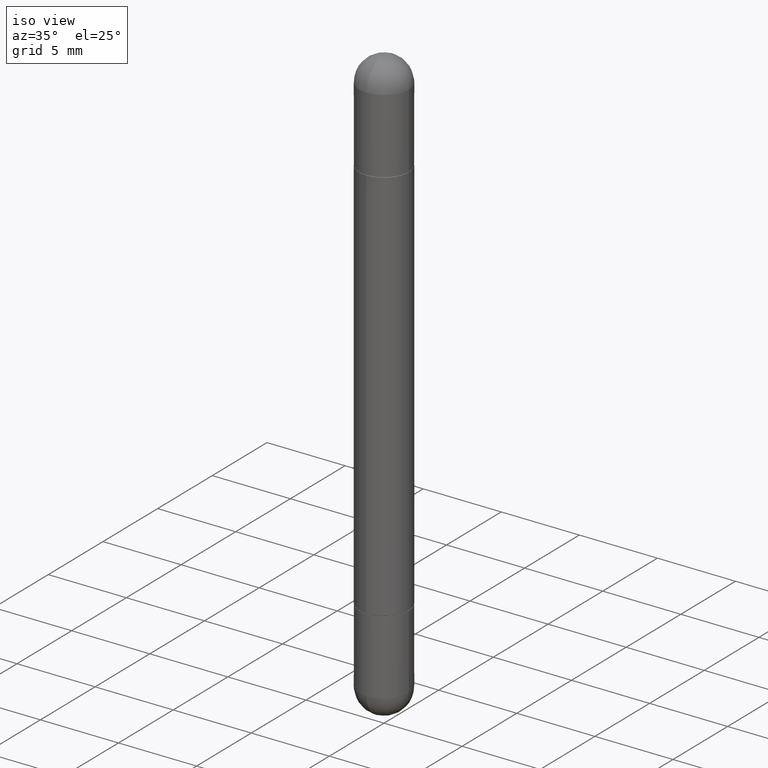
[diagram: clean part render]
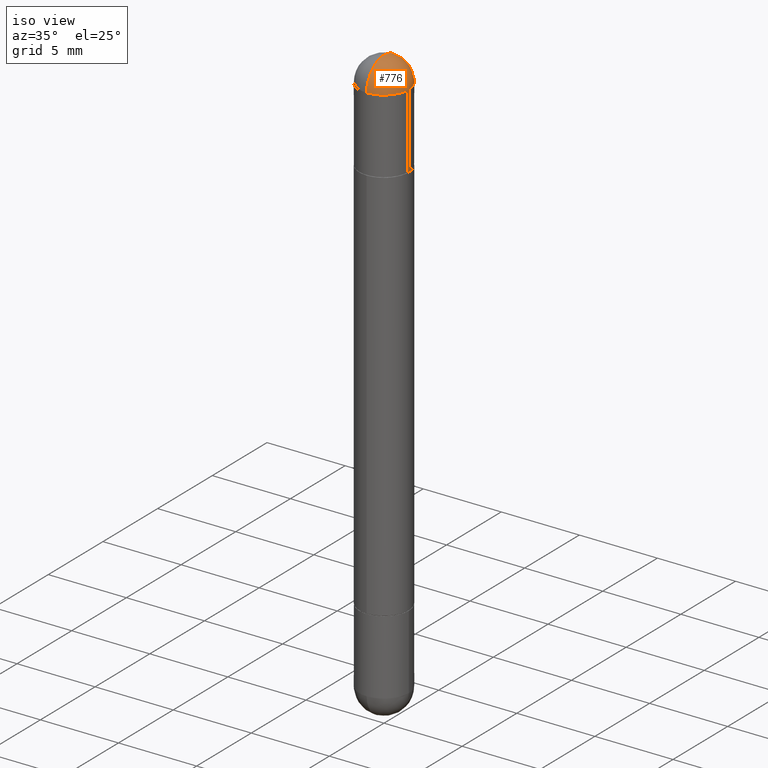
[diagram: same view with one face highlighted and labeled with its STEP entity id]
A machine part, iso view. The second image highlights one B-rep face of the part: STEP entity #776.
In plain terms, the highlighted spherical surface has radius 1.5875 mm.
Its self-contained STEP definition (entity closure, byte-faithful):
#4 = AXIS2_PLACEMENT_3D ( 'NONE', #14, #764, #262 ) ;
#7 = SPHERICAL_SURFACE ( 'NONE', #786, 0.06250000000000022204 ) ;
#14 = CARTESIAN_POINT ( 'NONE',  ( 3.184241630977248732E-29, -5.493186792727072638E-15, -0.06250000000000022204 ) ) ;
#40 = CARTESIAN_POINT ( 'NONE',  ( 4.364351673554259849E-16, 0.06249999999999485828, -0.06250000000000000000 ) ) ;
#94 = DIRECTION ( 'NONE',  ( 1.000000000000000000, -6.982962677686261189E-15, 0.000000000000000000 ) ) ;
#147 = CIRCLE ( 'NONE', #449, 0.06250000000000001388 ) ;
#148 = DIRECTION ( 'NONE',  ( 1.000000000000000000, -6.860497997771530774E-15, -4.840798879624142912E-29 ) ) ;
#156 = DIRECTION ( 'NONE',  ( 1.000000000000000000, -6.982962677686261189E-15, 0.000000000000000000 ) ) ;
#185 = ORIENTED_EDGE ( 'NONE', *, *, #573, .T. ) ;
#188 = EDGE_CURVE ( 'NONE', #271, #371, #744, .T. ) ;
#212 = CIRCLE ( 'NONE', #4, 0.06250000000000022204 ) ;
#249 = ORIENTED_EDGE ( 'NONE', *, *, #710, .T. ) ;
#262 = DIRECTION ( 'NONE',  ( -6.982962677686266711E-15, -1.000000000000000000, 0.000000000000000000 ) ) ;
#271 = VERTEX_POINT ( 'NONE', #743 ) ;
#281 = CIRCLE ( 'NONE', #547, 0.06250000000000022204 ) ;
#299 = VERTEX_POINT ( 'NONE', #630 ) ;
#321 = DIRECTION ( 'NONE',  ( 1.000000000000000000, -6.982962677686266711E-15, -4.883557194083112901E-29 ) ) ;
#371 = VERTEX_POINT ( 'NONE', #620 ) ;
#396 = DIRECTION ( 'NONE',  ( 6.860497997771530774E-15, 1.000000000000000000, 0.000000000000000000 ) ) ;
#407 = ORIENTED_EDGE ( 'NONE', *, *, #188, .T. ) ;
#408 = AXIS2_PLACEMENT_3D ( 'NONE', #475, #664, #94 ) ;
#437 = EDGE_LOOP ( 'NONE', ( #608, #249, #407, #185 ) ) ;
#445 = EDGE_CURVE ( 'NONE', #299, #564, #212, .T. ) ;
#449 = AXIS2_PLACEMENT_3D ( 'NONE', #798, #534, #156 ) ;
#475 = CARTESIAN_POINT ( 'NONE',  ( 3.515361408891134418E-29, -5.019004424587023131E-15, -0.06250000000000022204 ) ) ;
#534 = DIRECTION ( 'NONE',  ( 2.445468806185136597E-29, -3.491481338843145583E-15, 1.000000000000000000 ) ) ;
#547 = AXIS2_PLACEMENT_3D ( 'NONE', #717, #148, #396 ) ;
#564 = VERTEX_POINT ( 'NONE', #40 ) ;
#566 = CARTESIAN_POINT ( 'NONE',  ( 3.184241630977248732E-29, -5.493186792727072638E-15, -0.06250000000000022204 ) ) ;
#573 = EDGE_CURVE ( 'NONE', #371, #564, #147, .T. ) ;
#576 = DIRECTION ( 'NONE',  ( 6.982962677686266711E-15, 1.000000000000000000, 3.551402391763529759E-15 ) ) ;
#608 = ORIENTED_EDGE ( 'NONE', *, *, #445, .F. ) ;
#620 = CARTESIAN_POINT ( 'NONE',  ( 0.06250000000000001388, -5.128113216425869076E-15, -0.06250000000000022204 ) ) ;
#630 = CARTESIAN_POINT ( 'NONE',  ( 3.339755826017505569E-29, -5.707577355157435366E-15, 0.000000000000000000 ) ) ;
#639 = FACE_OUTER_BOUND ( 'NONE', #437, .T. ) ;
#664 = DIRECTION ( 'NONE',  ( 2.445468806185136597E-29, -3.491481338843145583E-15, 1.000000000000000000 ) ) ;
#710 = EDGE_CURVE ( 'NONE', #299, #271, #281, .T. ) ;
#717 = CARTESIAN_POINT ( 'NONE',  ( 3.184241630977248732E-29, -5.493186792727072638E-15, -0.06250000000000022204 ) ) ;
#743 = CARTESIAN_POINT ( 'NONE',  ( -4.287811248606879849E-16, -0.06250000000000537070, -0.06250000000000044409 ) ) ;
#744 = CIRCLE ( 'NONE', #408, 0.06250000000000001388 ) ;
#764 = DIRECTION ( 'NONE',  ( -1.000000000000000000, 6.982962677686265922E-15, 4.883557194083112340E-29 ) ) ;
#776 = ADVANCED_FACE ( 'NONE', ( #639 ), #7, .T. ) ;
#786 = AXIS2_PLACEMENT_3D ( 'NONE', #566, #321, #576 ) ;
#798 = CARTESIAN_POINT ( 'NONE',  ( 3.515361408891134418E-29, -5.019004424587023131E-15, -0.06250000000000022204 ) ) ;